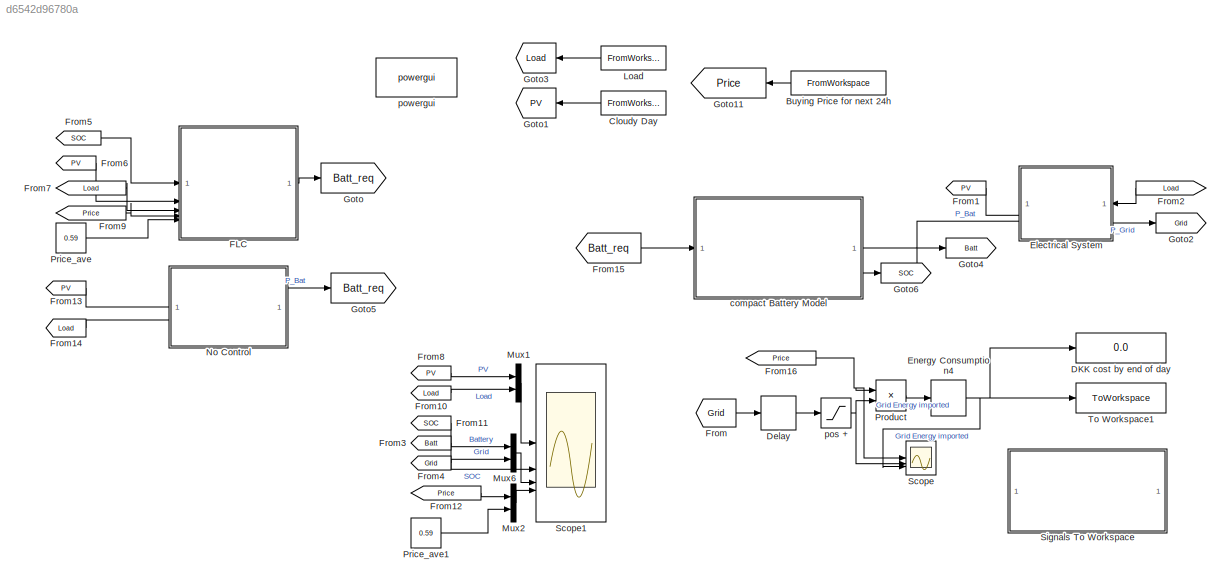
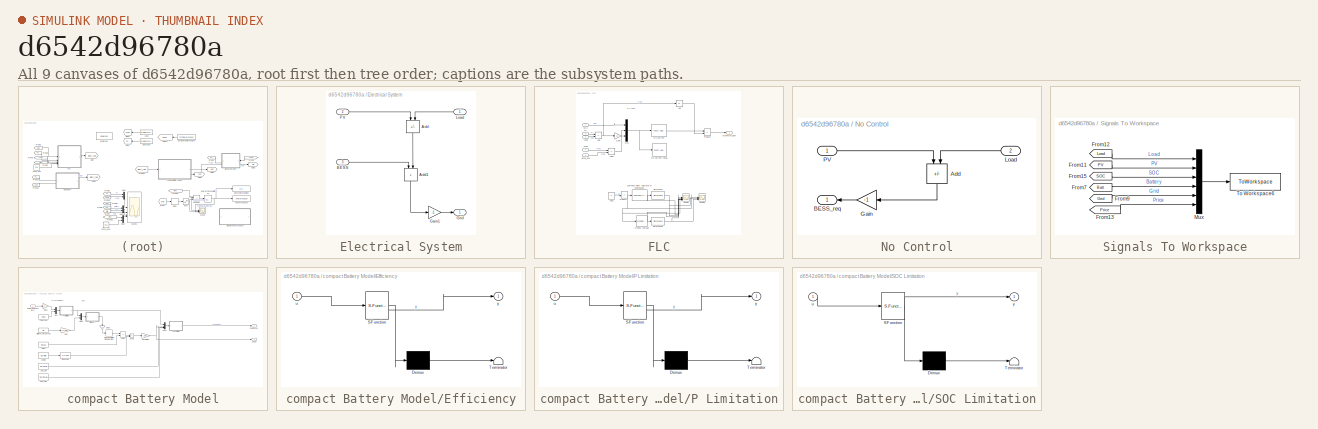
[diagram: thumbnail index - all 9 canvases of the model, root first then tree order]
MODEL slx_d6542d96780a
KIND model
CONFIG AbsTol = auto
CONFIG EnableMultiTasking = off
CONFIG FixedStep = auto
CONFIG MaxStep = auto
CONFIG MinStep = auto
CONFIG RelTol = 1e-3
CONFIG SampleTimeConstraint = Unconstrained
CONFIG SolverName = VariableStepAuto
CONFIG StartTime = 0.0
CONFIG StopTime = runtime
BLOCK [FromWorkspace] Buying Price for next 24h
  OutputAfterFinalValue = Holding final value
  SampleTime = Ts*60
  VariableName = simProfile_PriceBuying
  ZeroCross = off
BLOCK [FromWorkspace] Cloudy Day
  VariableName = simProfile_PV
  ZeroCross = off
BLOCK [Display] DKK cost by end of day
  Decimation = 1
BLOCK [Delay] Delay
  DelayLength = 1
  InputPortMap = u0
  SampleTime = Ts*60
BLOCK [SubSystem] Electrical System
  PortSchema = {"entries":[{"content":{"sides":[{"content":{"connectorIds":["In1","Out1"]},"type":"ConnectorPlacement.EquallySpacedRectSide","uuid":"ea2d6f6f-0b16-4ab1-9278-b701b85b7cf6"},{"content":{"connectorIds":["In2","In3"],"side":"RIGHT"},"type":"ConnectorPlacement.EquallySpacedRectSide","uuid":"7f792676-012d-49e4-aa54-4a4cf568511b"},{"content":{"side":"TOP"},"type":"ConnectorPlacement.EquallySpacedRectSid...<+234ch>
BLOCK [Sum] Electrical System/Add
  IconShape = rectangular
  Inputs = +-
  NameLocation = left
BLOCK [Sum] Electrical System/Add1
  IconShape = rectangular
  NameLocation = left
BLOCK [Inport] Electrical System/BESS
  Port = 3
BLOCK [Gain] Electrical System/Gain1
  Gain = -1
BLOCK [Outport] Electrical System/Grid
BLOCK [Inport] Electrical System/Load
BLOCK [Inport] Electrical System/PV
  Port = 2
BLOCK [DiscreteIntegrator] Energy Consumption4
  ICPrevOutput = DiscIntNeverNeededParam
  ICPrevScaledInput = DiscIntNeverNeededParam
  SampleTime = Ts*60
  gainval = 1
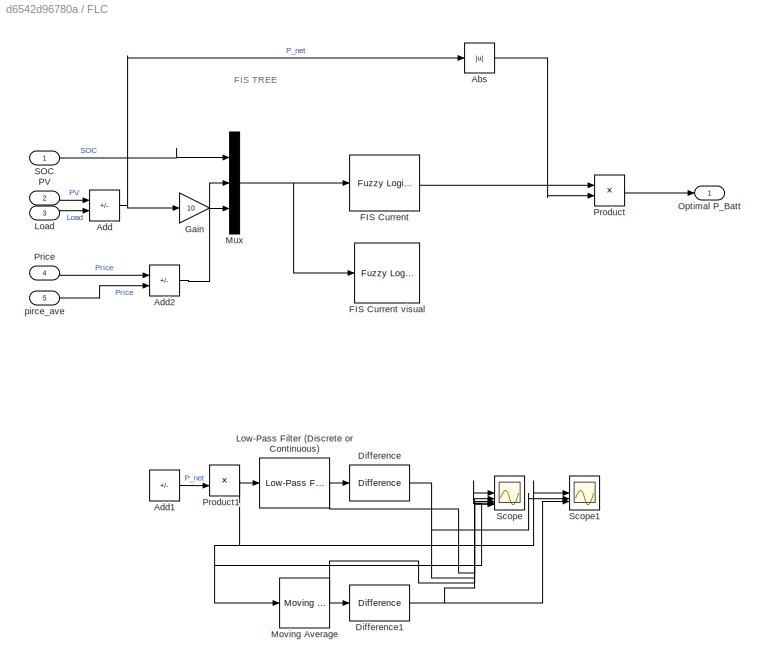
BLOCK [SubSystem] FLC
BLOCK [Abs] FLC/Abs
  SaturateOnIntegerOverflow = off
BLOCK [Sum] FLC/Add
  IconShape = rectangular
  Inputs = -+
BLOCK [Sum] FLC/Add1
  Commented = on
  IconShape = rectangular
  Inputs = -+
BLOCK [Sum] FLC/Add2
  IconShape = rectangular
  Inputs = +-
BLOCK [Reference] FLC/Difference  REF=simulink/Discrete/Difference
  Commented = on
  SourceBlock = simulink/Discrete/Difference
  SourceType = Difference
BLOCK [Reference] FLC/Difference1  REF=simulink/Discrete/Difference
  Commented = on
  SourceBlock = simulink/Discrete/Difference
  SourceType = Difference
BLOCK [Reference] FLC/FIS Current  REF=fuzblock/Fuzzy Logic   (lib defined in mdl_858b3b3e7478)
Controller
  SourceBlock = fuzblock/Fuzzy Logic \nController
  SourceType = Fuzzy Inference System
BLOCK [Reference] FLC/FIS Current visual  REF=fuzblock/Fuzzy Logic   (lib defined in mdl_858b3b3e7478)
Controller 
with Ruleviewer
  Commented = on
  SourceBlock = fuzblock/Fuzzy Logic \nController \nwith Ruleviewer
  SourceType = Fuzzy Inference System
BLOCK [Gain] FLC/Gain
  Gain = 10
BLOCK [Inport] FLC/Load
  NameLocation = left
  Port = 3
BLOCK [Reference] FLC/Low-Pass Filter (Discrete or Continuous)  REF=eeGeneralControl/Low-Pass Filter
(Discrete or Continuous)
  Commented = on
  LibrarySourceBlock = ee_sl_lib/General Control/Low-Pass Filter\n(Discrete or Continuous)
  SourceBlock = eeGeneralControl/Low-Pass Filter\n(Discrete or Continuous)
  SourceType = Low-Pass Filter (Discrete or Continuous)
BLOCK [Reference] FLC/Moving Average  REF=dspstat3/Moving
Average
  Commented = on
  SourceBlock = dspstat3/Moving\nAverage
  SourceType = dsp.simulink.MovingAverage
BLOCK [Mux] FLC/Mux
  DisplayOption = bar
  Inputs = 3
BLOCK [Outport] FLC/Optimal P_Batt
  VectorParamsAs1DForOutWhenUnconnected = off
BLOCK [Inport] FLC/PV
  NameLocation = left
  Port = 2
BLOCK [Inport] FLC/Price
  NameLocation = left
  Port = 4
BLOCK [Product] FLC/Product
BLOCK [Product] FLC/Product1
  Commented = on
BLOCK [Inport] FLC/SOC
  NameLocation = left
BLOCK [Scope] FLC/Scope
  Commented = on
  Floating = off
  NumInputPorts = 5
  ScopeSpecificationString = Simulink.scopes.TimeScopeBlockCfg('CurrentConfiguration', extmgr.ConfigurationSet(extmgr.Configuration('Core','General UI',true),extmgr.Configuration('Core','Source UI',true),extmgr.Configuration('Sources','WiredSimulink',true,'DataLoggingVariableName','ScopeData1'),extmgr.Configuration('Visuals','Time Domain',true,'PlotType','Line','SerializedDisplays',{struct('MinYLimReal','-3.27334','MaxYLimRea...<+4993ch>
BLOCK [Scope] FLC/Scope1
  Commented = on
  Floating = off
  NumInputPorts = 3
  ScopeSpecificationString = Simulink.scopes.TimeScopeBlockCfg('CurrentConfiguration', extmgr.ConfigurationSet(extmgr.Configuration('Core','General UI',true),extmgr.Configuration('Core','Source UI',true),extmgr.Configuration('Sources','WiredSimulink',true,'DataLoggingVariableName','ScopeData2'),extmgr.Configuration('Visuals','Time Domain',true,'PlotType','Stairs','SerializedDisplays',{struct('MinYLimReal','-3.27334','MaxYLimR...<+1406ch>
BLOCK [Inport] FLC/pirce_ave
  NameLocation = left
  Port = 5
BLOCK [From] From
  GotoTag = Grid
  TagVisibility = global
BLOCK [From] From1
  GotoTag = PV
  TagVisibility = global
BLOCK [From] From10
  GotoTag = Load
  TagVisibility = global
BLOCK [From] From11
  GotoTag = SOC
  TagVisibility = global
BLOCK [From] From12
  GotoTag = Price
  TagVisibility = global
BLOCK [From] From13
  Commented = on
  GotoTag = PV
  TagVisibility = global
BLOCK [From] From14
  Commented = on
  GotoTag = Load
  TagVisibility = global
BLOCK [From] From15
  GotoTag = Batt_req
BLOCK [From] From16
  GotoTag = Price
  TagVisibility = global
BLOCK [From] From2
  GotoTag = Load
  NameLocation = top
  TagVisibility = global
BLOCK [From] From3
  GotoTag = Batt
  TagVisibility = global
BLOCK [From] From4
  GotoTag = Grid
  TagVisibility = global
BLOCK [From] From5
  GotoTag = SOC
  TagVisibility = global
BLOCK [From] From6
  GotoTag = PV
  TagVisibility = global
BLOCK [From] From7
  GotoTag = Load
  TagVisibility = global
BLOCK [From] From8
  GotoTag = PV
  TagVisibility = global
BLOCK [From] From9
  GotoTag = Price
  TagVisibility = global
BLOCK [Goto] Goto
  GotoTag = Batt_req
BLOCK [Goto] Goto1
  GotoTag = PV
  NameLocation = top
  TagVisibility = global
BLOCK [Goto] Goto11
  GotoTag = Price
  NameLocation = top
  TagVisibility = global
BLOCK [Goto] Goto2
  GotoTag = Grid
  TagVisibility = global
BLOCK [Goto] Goto3
  GotoTag = Load
  NameLocation = top
  TagVisibility = global
BLOCK [Goto] Goto4
  GotoTag = Batt
  TagVisibility = global
BLOCK [Goto] Goto5
  Commented = on
  GotoTag = Batt_req
BLOCK [Goto] Goto6
  GotoTag = SOC
  TagVisibility = global
BLOCK [FromWorkspace] Load
  OutputAfterFinalValue = Holding final value
  SampleTime = Ts
  VariableName = simProfile_Load
  ZeroCross = off
BLOCK [Mux] Mux1
  DisplayOption = bar
  Inputs = 2
BLOCK [Mux] Mux2
  DisplayOption = bar
  Inputs = 2
BLOCK [Mux] Mux6
  DisplayOption = bar
  Inputs = 2
BLOCK [SubSystem] No Control
  Commented = on
  PortSchema = {"entries":[{"content":{"sides":[{"content":{"connectorIds":["Out1"]},"type":"ConnectorPlacement.EquallySpacedRectSide","uuid":"ea2d6f6f-0b16-4ab1-9278-b701b85b7cf6"},{"content":{"connectorIds":["In1","In2"],"side":"RIGHT"},"type":"ConnectorPlacement.EquallySpacedRectSide","uuid":"7f792676-012d-49e4-aa54-4a4cf568511b"},{"content":{"side":"TOP"},"type":"ConnectorPlacement.EquallySpacedRectSide","uu...<+228ch>
BLOCK [Sum] No Control/Add
  IconShape = rectangular
  Inputs = +-
  NameLocation = left
BLOCK [Outport] No Control/BESS_req
BLOCK [Gain] No Control/Gain
  Gain = -1
  NameLocation = top
BLOCK [Inport] No Control/Load
  Port = 2
BLOCK [Inport] No Control/PV
BLOCK [Constant] Price_ave
  Value = 0.59
BLOCK [Constant] Price_ave1
  Value = 0.59
BLOCK [Product] Product
BLOCK [Scope] Scope
  Floating = off
  NumInputPorts = 3
  ScopeSpecificationString = Simulink.scopes.TimeScopeBlockCfg('CurrentConfiguration', extmgr.ConfigurationSet(extmgr.Configuration('Core','General UI',true),extmgr.Configuration('Core','Source UI',true),extmgr.Configuration('Sources','WiredSimulink',true,'DataLoggingVariableName','ScopeData1'),extmgr.Configuration('Visuals','Time Domain',true,'PlotType','Stairs','SerializedDisplays',{struct('MinYLimReal','-0.34424','MaxYLimR...<+1462ch>
BLOCK [Scope] Scope1
  Floating = off
  NumInputPorts = 4
  ScopeSpecificationString = Simulink.scopes.TimeScopeBlockCfg('CurrentConfiguration', extmgr.ConfigurationSet(extmgr.Configuration('Core','General UI',true),extmgr.Configuration('Core','Source UI',true),extmgr.Configuration('Sources','WiredSimulink',true),extmgr.Configuration('Visuals','Time Domain',true,'SerializedDisplays',{struct('MinYLimReal','-0.65853','MaxYLimReal','5.92678','YLabelReal','','MinYLimMag','0.00000','MaxY...<+3644ch>
BLOCK [SubSystem] Signals To Workspace
  Commented = on
BLOCK [From] Signals To Workspace/From11
  GotoTag = PV
  TagVisibility = global
BLOCK [From] Signals To Workspace/From12
  GotoTag = Load
  TagVisibility = global
BLOCK [From] Signals To Workspace/From13
  GotoTag = Price
  TagVisibility = global
BLOCK [From] Signals To Workspace/From15
  GotoTag = SOC
  TagVisibility = global
BLOCK [From] Signals To Workspace/From7
  GotoTag = Batt
  TagVisibility = global
BLOCK [From] Signals To Workspace/From9
  GotoTag = Grid
  TagVisibility = global
BLOCK [Mux] Signals To Workspace/Mux
  DisplayOption = bar
  Inputs = 6
BLOCK [ToWorkspace] Signals To Workspace/To Workspace6
  FixptAsFi = on
  MaxDataPoints = inf
  SampleTime = -1
  SaveFormat = Structure With Time
  VariableName = Power
BLOCK [ToWorkspace] To Workspace1
  FixptAsFi = on
  MaxDataPoints = inf
  SampleTime = -1
  SaveFormat = Structure With Time
  VariableName = SmartMeter_Bill
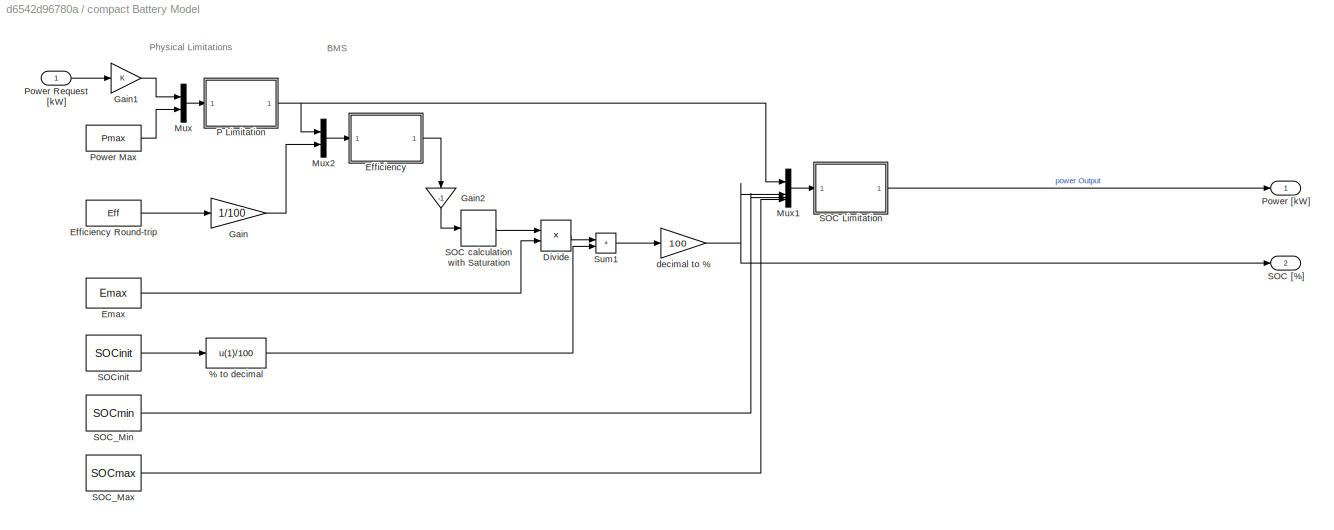
BLOCK [SubSystem] compact Battery Model
BLOCK [Fcn] compact Battery Model/% to decimal
  Expr = u(1)/100
BLOCK [Product] compact Battery Model/Divide
  Inputs = */
BLOCK [SubSystem] compact Battery Model/Efficiency
  ErrorFcn = Stateflow.Translate.translate
  PermitHierarchicalResolution = ExplicitOnly
  SFBlockType = MATLAB Function
  TreatAsAtomicUnit = on
BLOCK [Constant] compact Battery Model/Efficiency Round-trip
  Value = Eff
BLOCK [Demux] compact Battery Model/Efficiency/ Demux 
  Outputs = 1
BLOCK [S-Function] compact Battery Model/Efficiency/ SFunction 
  EnableBusSupport = on
  FunctionName = sf_sfun
  PortCounts = [1 2]
  SFcnIsStateOwnerBlock = off
  SFunctionDeploymentMode = off
  Tag = Stateflow S-Function 4
BLOCK [Terminator] compact Battery Model/Efficiency/ Terminator 
BLOCK [Inport] compact Battery Model/Efficiency/u
BLOCK [Outport] compact Battery Model/Efficiency/y
BLOCK [Constant] compact Battery Model/Emax
  Value = Emax
BLOCK [Gain] compact Battery Model/Gain
  Gain = 1/100
BLOCK [Gain] compact Battery Model/Gain1
BLOCK [Gain] compact Battery Model/Gain2
  Gain = -1
  NameLocation = left
BLOCK [Mux] compact Battery Model/Mux
  DisplayOption = bar
  Inputs = 2
BLOCK [Mux] compact Battery Model/Mux1
  DisplayOption = bar
BLOCK [Mux] compact Battery Model/Mux2
  DisplayOption = bar
  Inputs = 2
BLOCK [SubSystem] compact Battery Model/P Limitation
  ErrorFcn = Stateflow.Translate.translate
  PermitHierarchicalResolution = ExplicitOnly
  SFBlockType = MATLAB Function
  TreatAsAtomicUnit = on
BLOCK [Demux] compact Battery Model/P Limitation/ Demux 
  Outputs = 1
BLOCK [S-Function] compact Battery Model/P Limitation/ SFunction 
  EnableBusSupport = on
  FunctionName = sf_sfun
  PortCounts = [1 2]
  SFcnIsStateOwnerBlock = off
  SFunctionDeploymentMode = off
  Tag = Stateflow S-Function 1
BLOCK [Terminator] compact Battery Model/P Limitation/ Terminator 
BLOCK [Inport] compact Battery Model/P Limitation/u
BLOCK [Outport] compact Battery Model/P Limitation/y
BLOCK [Constant] compact Battery Model/Power Max
  Value = Pmax
BLOCK [Inport] compact Battery Model/Power Request [kW]
BLOCK [Outport] compact Battery Model/Power [kW]
BLOCK [SubSystem] compact Battery Model/SOC Limitation
  ErrorFcn = Stateflow.Translate.translate
  PermitHierarchicalResolution = ExplicitOnly
  SFBlockType = MATLAB Function
  TreatAsAtomicUnit = on
BLOCK [Demux] compact Battery Model/SOC Limitation/ Demux 
  Outputs = 1
BLOCK [S-Function] compact Battery Model/SOC Limitation/ SFunction 
  EnableBusSupport = on
  FunctionName = sf_sfun
  PortCounts = [1 2]
  SFcnIsStateOwnerBlock = off
  SFunctionDeploymentMode = off
  Tag = Stateflow S-Function 2
BLOCK [Terminator] compact Battery Model/SOC Limitation/ Terminator 
BLOCK [Inport] compact Battery Model/SOC Limitation/u
BLOCK [Outport] compact Battery Model/SOC Limitation/y
BLOCK [Outport] compact Battery Model/SOC [%]
  Port = 2
BLOCK [DiscreteIntegrator] compact Battery Model/SOC calculation with Saturation
  ICPrevOutput = DiscIntNeverNeededParam
  ICPrevScaledInput = DiscIntNeverNeededParam
  LimitOutput = on
  LowerSaturationLimit = +SOCmin/100*Emax - SOCinit/100 *Emax
  SampleTime = -1
  UpperSaturationLimit = SOCmax/100*Emax -SOCinit/100 *Emax
  gainval = 1
BLOCK [Constant] compact Battery Model/SOC_Max
  Value = SOCmax
BLOCK [Constant] compact Battery Model/SOC_Min
  Value = SOCmin
BLOCK [Constant] compact Battery Model/SOCinit
  Value = SOCinit
BLOCK [Sum] compact Battery Model/Sum1
  IconShape = rectangular
BLOCK [Gain] compact Battery Model/decimal to %
  Gain = 100
BLOCK [Saturate] pos +
  LowerLimit = 0
  UpperLimit = inf
  ZeroCross = off
BLOCK [Reference] powergui  REF=spspowerguiLib/powergui
  LibrarySourceBlock = sps_lib/powergui
  Priority = 1
  SourceBlock = spspowerguiLib/powergui
  SourceType = PSB option menu block
ANNOTATION FLC: FIS TREE
ANNOTATION compact Battery Model: BMS
ANNOTATION compact Battery Model: Physical Limitations
LINE Buying Price for next 24h:1 -> Goto11:1
LINE Cloudy Day:1 -> Goto1:1
LINE Delay:1 -> pos +:1
LINE Electrical System/Add1:1 -> Electrical System/Gain1:1
LINE Electrical System/Add:1 -> Electrical System/Add1:2
LINE Electrical System/BESS:1 -> Electrical System/Add1:1
LINE Electrical System/Gain1:1 -> Electrical System/Grid:1
LINE Electrical System/Load:1 -> Electrical System/Add:2
LINE Electrical System/PV:1 -> Electrical System/Add:1
LINE Electrical System:1 -> Goto2:1
NET Energy Consumption4:1 -> DKK cost by end of day:1, Scope:3, To Workspace1:1
LINE FLC/Abs:1 -> FLC/Product:2
LINE FLC/Add1:1 -> FLC/Product1:2
LINE FLC/Add2:1 -> FLC/Mux:3
NET FLC/Add:1 -> FLC/Abs:1, FLC/Gain:1
NET FLC/Difference1:1 -> FLC/Scope1:3, FLC/Scope:5
NET FLC/Difference:1 -> FLC/Scope1:2, FLC/Scope:3
LINE FLC/FIS Current:1 -> FLC/Product:1
LINE FLC/Gain:1 -> FLC/Mux:2
LINE FLC/Load:1 -> FLC/Add:2
NET FLC/Low-Pass Filter (Discrete or Continuous):1 -> FLC/Difference:1, FLC/Scope:2
NET FLC/Moving Average:1 -> FLC/Difference1:1, FLC/Scope:4
NET FLC/Mux:1 -> FLC/FIS Current visual:1, FLC/FIS Current:1
LINE FLC/PV:1 -> FLC/Add:1
LINE FLC/Price:1 -> FLC/Add2:1
NET FLC/Product1:1 -> FLC/Low-Pass Filter (Discrete or Continuous):1, FLC/Moving Average:1, FLC/Scope1:1, FLC/Scope:1
LINE FLC/Product:1 -> FLC/Optimal P_Batt:1
LINE FLC/SOC:1 -> FLC/Mux:1
LINE FLC/pirce_ave:1 -> FLC/Add2:2
LINE FLC:1 -> Goto:1
LINE From10:1 -> Mux1:2
LINE From11:1 -> Scope1:2
LINE From12:1 -> Mux2:1
LINE From13:1 -> No Control:1
LINE From14:1 -> No Control:2
LINE From15:1 -> compact Battery Model:1
NET From16:1 -> Product:1, Scope:1
LINE From1:1 -> Electrical System:2
LINE From2:1 -> Electrical System:1
LINE From3:1 -> Mux6:1
LINE From4:1 -> Mux6:2
LINE From5:1 -> FLC:1
LINE From6:1 -> FLC:2
LINE From7:1 -> FLC:3
LINE From8:1 -> Mux1:1
LINE From9:1 -> FLC:4
LINE From:1 -> Delay:1
LINE Load:1 -> Goto3:1
LINE Mux1:1 -> Scope1:1
LINE Mux2:1 -> Scope1:4
LINE Mux6:1 -> Scope1:3
LINE No Control/Add:1 -> No Control/Gain:1
LINE No Control/Gain:1 -> No Control/BESS_req:1
LINE No Control/Load:1 -> No Control/Add:2
LINE No Control/PV:1 -> No Control/Add:1
LINE No Control:1 -> Goto5:1
LINE Price_ave1:1 -> Mux2:2
LINE Price_ave:1 -> FLC:5
LINE Product:1 -> Energy Consumption4:1
LINE Signals To Workspace/From11:1 -> Signals To Workspace/Mux:2
LINE Signals To Workspace/From12:1 -> Signals To Workspace/Mux:1
LINE Signals To Workspace/From13:1 -> Signals To Workspace/Mux:6
LINE Signals To Workspace/From15:1 -> Signals To Workspace/Mux:3
LINE Signals To Workspace/From7:1 -> Signals To Workspace/Mux:4
LINE Signals To Workspace/From9:1 -> Signals To Workspace/Mux:5
LINE Signals To Workspace/Mux:1 -> Signals To Workspace/To Workspace6:1
LINE compact Battery Model/% to decimal:1 -> compact Battery Model/Sum1:2
LINE compact Battery Model/Divide:1 -> compact Battery Model/Sum1:1
LINE compact Battery Model/Efficiency Round-trip:1 -> compact Battery Model/Gain:1
LINE compact Battery Model/Efficiency:1 -> compact Battery Model/Gain2:1
LINE compact Battery Model/Emax:1 -> compact Battery Model/Divide:2
LINE compact Battery Model/Gain1:1 -> compact Battery Model/Mux:1
LINE compact Battery Model/Gain2:1 -> compact Battery Model/SOC calculation with Saturation:1
LINE compact Battery Model/Gain:1 -> compact Battery Model/Mux2:2
LINE compact Battery Model/Mux1:1 -> compact Battery Model/SOC Limitation:1
LINE compact Battery Model/Mux2:1 -> compact Battery Model/Efficiency:1
LINE compact Battery Model/Mux:1 -> compact Battery Model/P Limitation:1
NET compact Battery Model/P Limitation:1 -> compact Battery Model/Mux1:1, compact Battery Model/Mux2:1
LINE compact Battery Model/Power Max:1 -> compact Battery Model/Mux:2
LINE compact Battery Model/Power Request [kW]:1 -> compact Battery Model/Gain1:1
LINE compact Battery Model/SOC Limitation:1 -> compact Battery Model/Power [kW]:1
LINE compact Battery Model/SOC calculation with Saturation:1 -> compact Battery Model/Divide:1
LINE compact Battery Model/SOC_Max:1 -> compact Battery Model/Mux1:4
LINE compact Battery Model/SOC_Min:1 -> compact Battery Model/Mux1:3
LINE compact Battery Model/SOCinit:1 -> compact Battery Model/% to decimal:1
LINE compact Battery Model/Sum1:1 -> compact Battery Model/decimal to %:1
NET compact Battery Model/decimal to %:1 -> compact Battery Model/Mux1:2, compact Battery Model/SOC [%]:1
NET compact Battery Model:1 -> Electrical System:3, Goto4:1
LINE compact Battery Model:2 -> Goto6:1
NET pos +:1 -> Product:2, Scope:2
note: NET lines group one-source signal fan-out (src -> all destinations, sorted); 1:1 wires keep LINE
CHART compact Battery Model/SOC Limitation states=1 transitions=1
  STATE_LABEL 'eML_blk_kernel()'
  STATE_LABEL 'SCRIPT:\nfunction y = fcn(u)\nPout = u(1);\nSOC = u(2) ;\nSOC_min = u(3);\nSOC_max = u(4);\n\nif ( SOC<=SOC_min || SOC>=SOC_max)\n    Pout = 0;\nend\n\ny = Pout;\n'
CHART compact Battery Model/Efficiency states=1 transitions=1
  STATE_LABEL 'eML_blk_kernel()'
  STATE_LABEL 'SCRIPT:\nfunction y = fcn(u)\nPreq = u(1);\neff = u(2) ;\n\nif ( Preq>0) % Discharging\n    y = u(1)/u(2); % for charging soc = P_bat/eff\nelse % charging\n    y = u(1)*u(2); % for charging soc = P_bat*eff\nend\n\n'
CHART compact Battery Model/P Limitation states=1 transitions=1
  STATE_LABEL 'eML_blk_kernel()'
  STATE_LABEL 'SCRIPT:\nfunction y = fcn(u)\ny = min(max(u(1), -u(2)), u(2));\n'
CHART  states=0 transitions=0
CHART  states=0 transitions=0
CHART  states=0 transitions=0
